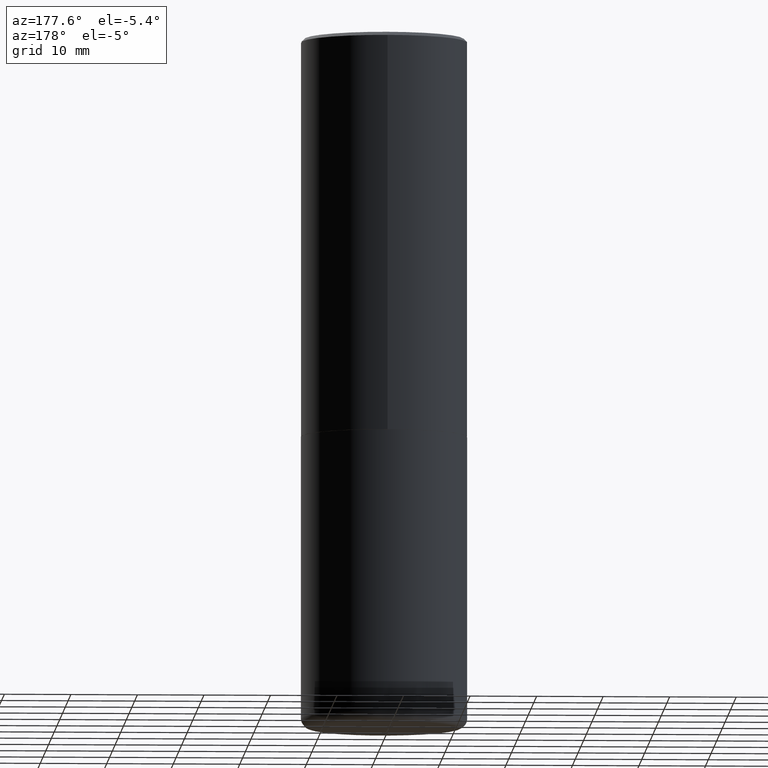
[diagram: clean part render]
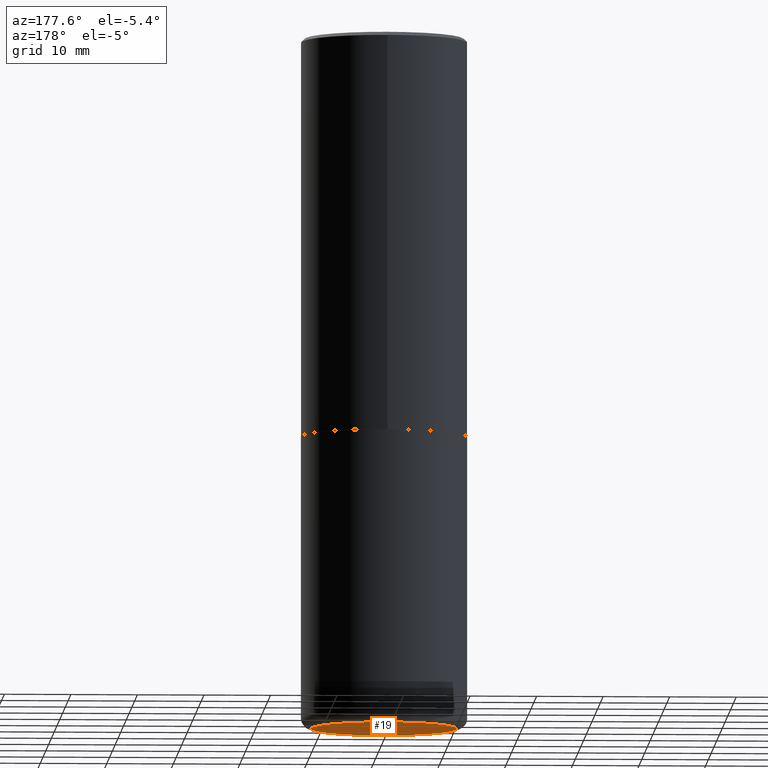
[diagram: same view with one face highlighted and labeled with its STEP entity id]
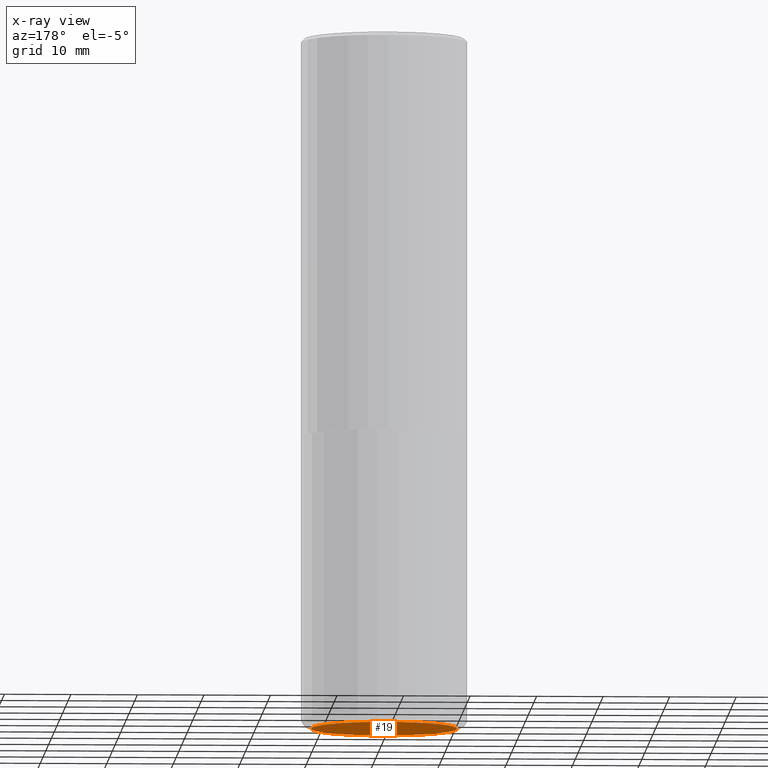
[diagram: x-ray of the same camera — body ghosted, the highlighted face saturated]
A machine part, auxiliary view. The second image highlights one B-rep face of the part: STEP entity #19.
The next image is the same camera in x-ray: the body ghosted, the highlighted face saturated — about 0% of this face is hidden behind the body in this view.
In plain terms, the highlighted planar face has unit normal (0, -0, -1).
Its self-contained STEP definition (entity closure, byte-faithful):
#1 = CARTESIAN_POINT ( 'NONE',  ( -0.4323499999999999566, -1.090699125381078817E-14, -4.094500000000000917 ) ) ;
#3 = AXIS2_PLACEMENT_3D ( 'NONE', #138, #401, #238 ) ;
#4 = AXIS2_PLACEMENT_3D ( 'NONE', #152, #90, #118 ) ;
#5 = EDGE_LOOP ( 'NONE', ( #37, #251 ) ) ;
#17 = DIRECTION ( 'NONE',  ( -1.000000000000000000, 6.982962677686265922E-15, -4.876176775795935793E-29 ) ) ;
#19 = ADVANCED_FACE ( 'NONE', ( #233 ), #209, .T. ) ;
#29 = VERTEX_POINT ( 'NONE', #366 ) ;
#37 = ORIENTED_EDGE ( 'NONE', *, *, #156, .F. ) ;
#72 = AXIS2_PLACEMENT_3D ( 'NONE', #262, #79, #17 ) ;
#79 = DIRECTION ( 'NONE',  ( 2.438088387897960049E-29, -3.491481338843145188E-15, -1.000000000000000000 ) ) ;
#90 = DIRECTION ( 'NONE',  ( -2.445468806185136597E-29, 3.491481338843145583E-15, 1.000000000000000000 ) ) ;
#118 = DIRECTION ( 'NONE',  ( 1.000000000000000000, -6.982962677686265133E-15, 0.000000000000000000 ) ) ;
#138 = CARTESIAN_POINT ( 'NONE',  ( 1.001297202692504327E-28, -1.429587034189326465E-14, -4.094500000000000917 ) ) ;
#149 = CIRCLE ( 'NONE', #3, 0.4323499999999999566 ) ;
#152 = CARTESIAN_POINT ( 'NONE',  ( 1.001297202692504327E-28, -1.429587034189326465E-14, -4.094500000000000917 ) ) ;
#156 = EDGE_CURVE ( 'NONE', #29, #418, #149, .T. ) ;
#209 = PLANE ( 'NONE',  #72 ) ;
#231 = CIRCLE ( 'NONE', #4, 0.4323499999999999566 ) ;
#233 = FACE_OUTER_BOUND ( 'NONE', #5, .T. ) ;
#238 = DIRECTION ( 'NONE',  ( 1.000000000000000000, -6.982962677686265133E-15, 0.000000000000000000 ) ) ;
#251 = ORIENTED_EDGE ( 'NONE', *, *, #372, .F. ) ;
#262 = CARTESIAN_POINT ( 'NONE',  ( 6.399774875433390499E-29, -1.947017431323977898E-14, -4.094500000000000917 ) ) ;
#366 = CARTESIAN_POINT ( 'NONE',  ( 0.4323499999999999566, -1.731495425559091942E-14, -4.094500000000000917 ) ) ;
#372 = EDGE_CURVE ( 'NONE', #418, #29, #231, .T. ) ;
#401 = DIRECTION ( 'NONE',  ( -2.445468806185136597E-29, 3.491481338843145583E-15, 1.000000000000000000 ) ) ;
#418 = VERTEX_POINT ( 'NONE', #1 ) ;